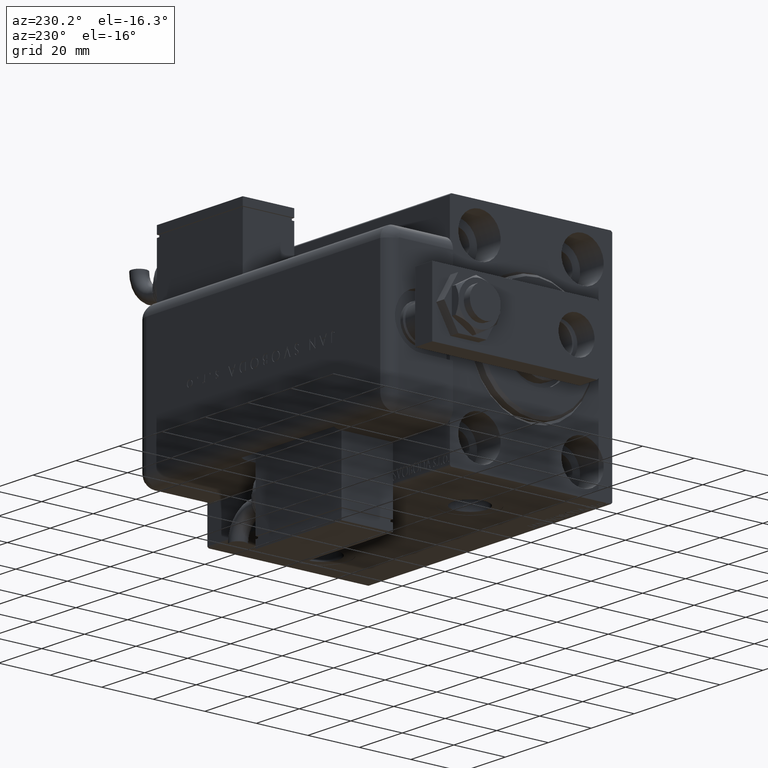
[diagram: clean part render]
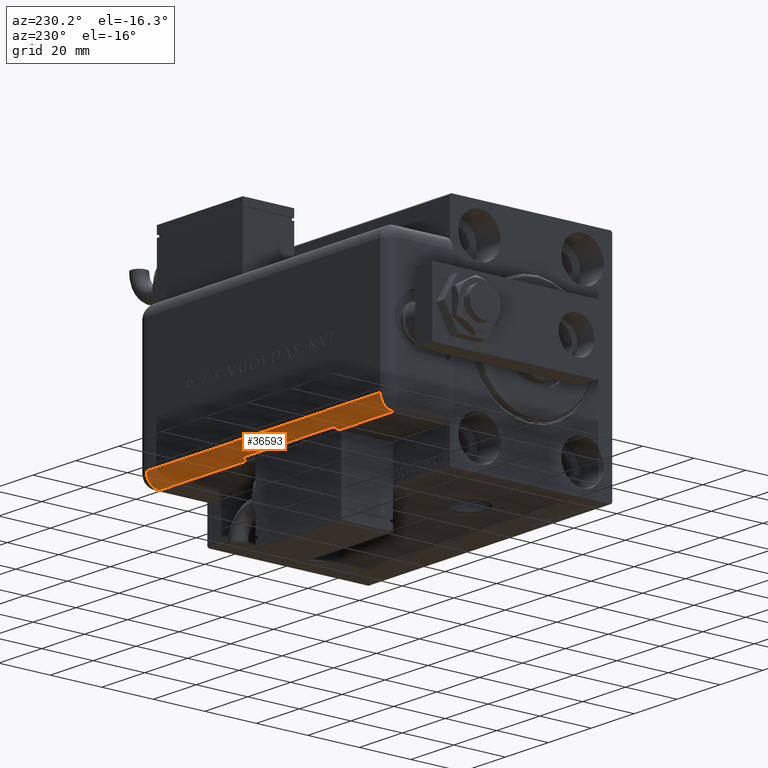
[diagram: same view with one face highlighted and labeled with its STEP entity id]
A machine part, auxiliary view. The second image highlights one B-rep face of the part: STEP entity #36593.
In plain terms, the highlighted cylindrical surface (edge-blend (fillet) strip) has radius 5 mm, axis along (1, -0, -0).
Its self-contained STEP definition (entity closure, byte-faithful):
#1026 = EDGE_CURVE ( 'NONE', #34100, #59865, #17338, .T. ) ;
#1247 = ORIENTED_EDGE ( 'NONE', *, *, #5009, .F. ) ;
#1585 = DIRECTION ( 'NONE',  ( 0.000000000000000000, 0.000000000000000000, -1.000000000000000000 ) ) ;
#2500 = CIRCLE ( 'NONE', #4488, 5.000000000000000888 ) ;
#3532 = CARTESIAN_POINT ( 'NONE',  ( -28.99999999999999645, 20.79999999999998650, 5.000000000000004441 ) ) ;
#4483 = EDGE_CURVE ( 'NONE', #14079, #11676, #32999, .T. ) ;
#4488 = AXIS2_PLACEMENT_3D ( 'NONE', #9737, #9139, #8836 ) ;
#5009 = EDGE_CURVE ( 'NONE', #24785, #8871, #12367, .T. ) ;
#6983 = EDGE_CURVE ( 'NONE', #11676, #28570, #25014, .T. ) ;
#7567 = DIRECTION ( 'NONE',  ( -1.000000000000000000, 0.000000000000000000, 0.000000000000000000 ) ) ;
#8265 = DIRECTION ( 'NONE',  ( 0.000000000000000000, -0.000000000000000000, -1.000000000000000000 ) ) ;
#8836 = DIRECTION ( 'NONE',  ( -1.000000000000000000, 0.000000000000000000, 0.000000000000000000 ) ) ;
#8871 = VERTEX_POINT ( 'NONE', #39394 ) ;
#9139 = DIRECTION ( 'NONE',  ( -0.000000000000000000, -0.000000000000000000, 1.000000000000000000 ) ) ;
#9270 = EDGE_CURVE ( 'NONE', #43729, #24785, #36737, .T. ) ;
#9737 = CARTESIAN_POINT ( 'NONE',  ( -24.00000000000000000, 20.79999999999998650, 114.0000000000000000 ) ) ;
#11358 = DIRECTION ( 'NONE',  ( -0.000000000000000000, -0.000000000000000000, 1.000000000000000000 ) ) ;
#11676 = VERTEX_POINT ( 'NONE', #51267 ) ;
#12186 = AXIS2_PLACEMENT_3D ( 'NONE', #12672, #32082, #27462 ) ;
#12367 = CIRCLE ( 'NONE', #20204, 5.000000000000000888 ) ;
#12672 = CARTESIAN_POINT ( 'NONE',  ( -24.00000000000000000, 20.79999999999998650, 114.0000000000000000 ) ) ;
#14079 = VERTEX_POINT ( 'NONE', #26072 ) ;
#17338 = LINE ( 'NONE', #48985, #48640 ) ;
#17437 = DIRECTION ( 'NONE',  ( -1.000000000000000000, -3.469446951953613400E-15, 0.000000000000000000 ) ) ;
#20204 = AXIS2_PLACEMENT_3D ( 'NONE', #37224, #8265, #60976 ) ;
#21011 = CARTESIAN_POINT ( 'NONE',  ( -28.99999999999999645, 20.79999999999998650, 114.0000000000000000 ) ) ;
#22080 = DIRECTION ( 'NONE',  ( -0.000000000000000000, -0.000000000000000000, 1.000000000000000000 ) ) ;
#23313 = ORIENTED_EDGE ( 'NONE', *, *, #59952, .F. ) ;
#23604 = EDGE_LOOP ( 'NONE', ( #25423, #28579, #1247, #35262, #23313, #55132, #54387, #54342 ) ) ;
#24785 = VERTEX_POINT ( 'NONE', #60015 ) ;
#25014 = LINE ( 'NONE', #21011, #41957 ) ;
#25423 = ORIENTED_EDGE ( 'NONE', *, *, #4483, .F. ) ;
#26072 = CARTESIAN_POINT ( 'NONE',  ( -28.48998886412872622, 22.99999999999998934, 46.00000000000001421 ) ) ;
#26590 = CARTESIAN_POINT ( 'NONE',  ( -28.99999999999999645, 20.79999999999998650, 114.0000000000000000 ) ) ;
#26657 = CARTESIAN_POINT ( 'NONE',  ( -28.48998886412872622, 22.99999999999998934, 114.0000000000000000 ) ) ;
#26834 = EDGE_CURVE ( 'NONE', #34100, #28570, #36563, .T. ) ;
#27462 = DIRECTION ( 'NONE',  ( -1.000000000000000000, 0.000000000000000000, 0.000000000000000000 ) ) ;
#27589 = DIRECTION ( 'NONE',  ( -0.000000000000000000, -0.000000000000000000, 1.000000000000000000 ) ) ;
#28570 = VERTEX_POINT ( 'NONE', #3532 ) ;
#28579 = ORIENTED_EDGE ( 'NONE', *, *, #58197, .F. ) ;
#29655 = AXIS2_PLACEMENT_3D ( 'NONE', #60282, #27589, #7567 ) ;
#31474 = CYLINDRICAL_SURFACE ( 'NONE', #12186, 5.000000000000000888 ) ;
#32082 = DIRECTION ( 'NONE',  ( 0.000000000000000000, 0.000000000000000000, -1.000000000000000000 ) ) ;
#32999 = CIRCLE ( 'NONE', #37919, 5.000000000000000888 ) ;
#34100 = VERTEX_POINT ( 'NONE', #48633 ) ;
#35262 = ORIENTED_EDGE ( 'NONE', *, *, #9270, .F. ) ;
#36563 = CIRCLE ( 'NONE', #29655, 5.000000000000000888 ) ;
#36593 = ADVANCED_FACE ( 'NONE', ( #54923 ), #31474, .T. ) ;
#36737 = LINE ( 'NONE', #26590, #49101 ) ;
#37224 = CARTESIAN_POINT ( 'NONE',  ( -24.00000000000000000, 20.79999999999998650, 89.00000000000001421 ) ) ;
#37919 = AXIS2_PLACEMENT_3D ( 'NONE', #45487, #22080, #17437 ) ;
#38856 = CARTESIAN_POINT ( 'NONE',  ( -24.00000000000000000, 25.79999999999998295, 114.0000000000000000 ) ) ;
#39394 = CARTESIAN_POINT ( 'NONE',  ( -28.48998886412872622, 22.99999999999998934, 89.00000000000001421 ) ) ;
#41957 = VECTOR ( 'NONE', #1585, 1000.000000000000000 ) ;
#43729 = VERTEX_POINT ( 'NONE', #60583 ) ;
#45487 = CARTESIAN_POINT ( 'NONE',  ( -24.00000000000000000, 20.79999999999998650, 46.00000000000001421 ) ) ;
#48633 = CARTESIAN_POINT ( 'NONE',  ( -24.00000000000000000, 25.79999999999998295, 5.000000000000004441 ) ) ;
#48640 = VECTOR ( 'NONE', #11358, 1000.000000000000000 ) ;
#48762 = VECTOR ( 'NONE', #51305, 1000.000000000000000 ) ;
#48985 = CARTESIAN_POINT ( 'NONE',  ( -24.00000000000000000, 25.79999999999998295, 114.0000000000000000 ) ) ;
#49101 = VECTOR ( 'NONE', #54656, 1000.000000000000000 ) ;
#51267 = CARTESIAN_POINT ( 'NONE',  ( -28.99999999999999645, 20.79999999999998650, 46.00000000000001421 ) ) ;
#51305 = DIRECTION ( 'NONE',  ( 0.000000000000000000, 0.000000000000000000, -1.000000000000000000 ) ) ;
#54342 = ORIENTED_EDGE ( 'NONE', *, *, #6983, .F. ) ;
#54387 = ORIENTED_EDGE ( 'NONE', *, *, #26834, .T. ) ;
#54656 = DIRECTION ( 'NONE',  ( 0.000000000000000000, 0.000000000000000000, -1.000000000000000000 ) ) ;
#54923 = FACE_OUTER_BOUND ( 'NONE', #23604, .T. ) ;
#55132 = ORIENTED_EDGE ( 'NONE', *, *, #1026, .F. ) ;
#58197 = EDGE_CURVE ( 'NONE', #8871, #14079, #60557, .T. ) ;
#59865 = VERTEX_POINT ( 'NONE', #38856 ) ;
#59952 = EDGE_CURVE ( 'NONE', #59865, #43729, #2500, .T. ) ;
#60015 = CARTESIAN_POINT ( 'NONE',  ( -28.99999999999999645, 20.79999999999998650, 89.00000000000001421 ) ) ;
#60282 = CARTESIAN_POINT ( 'NONE',  ( -24.00000000000000000, 20.79999999999998650, 5.000000000000004441 ) ) ;
#60557 = LINE ( 'NONE', #26657, #48762 ) ;
#60583 = CARTESIAN_POINT ( 'NONE',  ( -28.99999999999999645, 20.79999999999998650, 114.0000000000000000 ) ) ;
#60976 = DIRECTION ( 'NONE',  ( 1.000000000000000000, 0.000000000000000000, 0.000000000000000000 ) ) ;